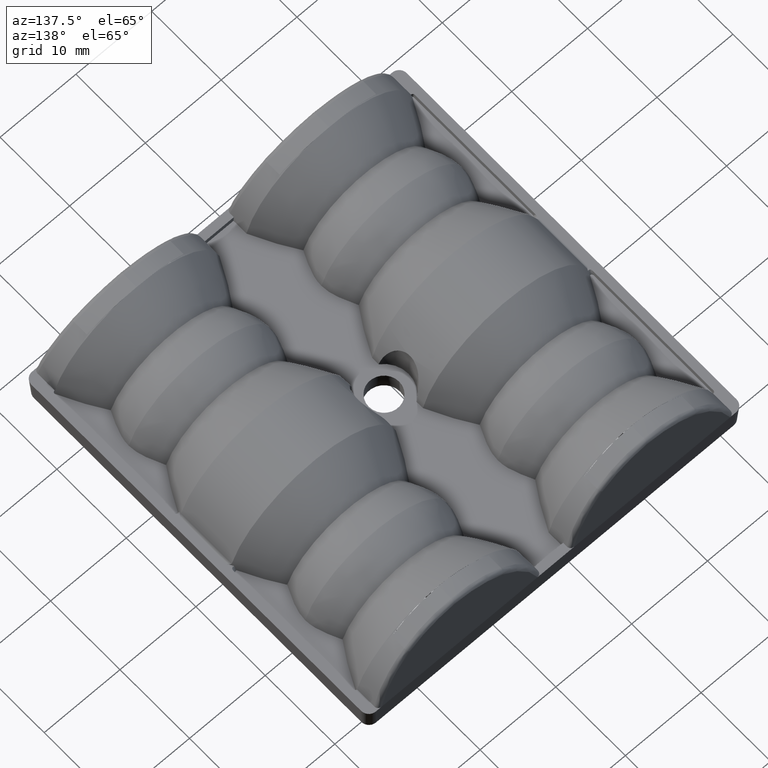
[diagram: clean part render]
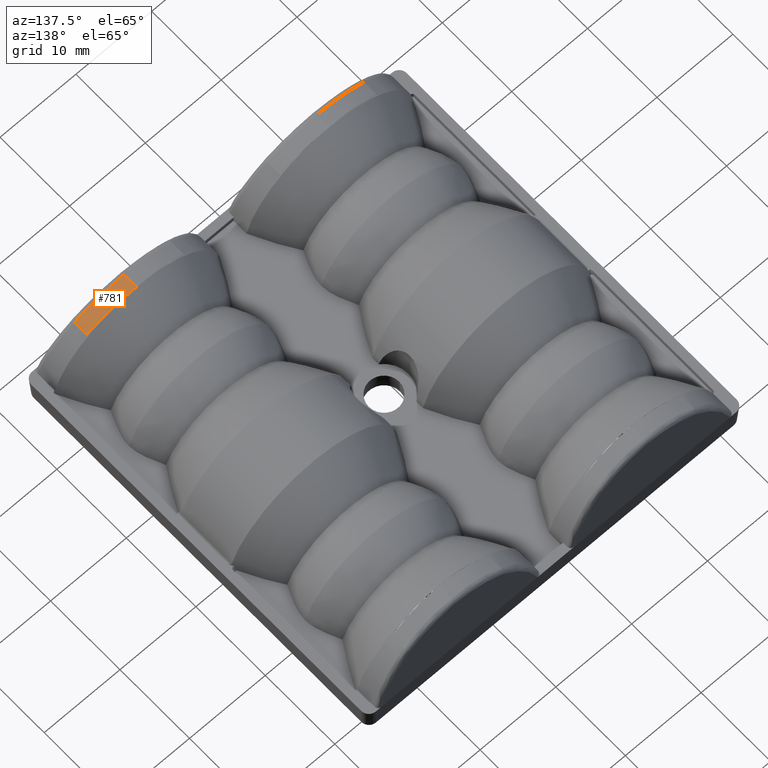
[diagram: same view with one face highlighted and labeled with its STEP entity id]
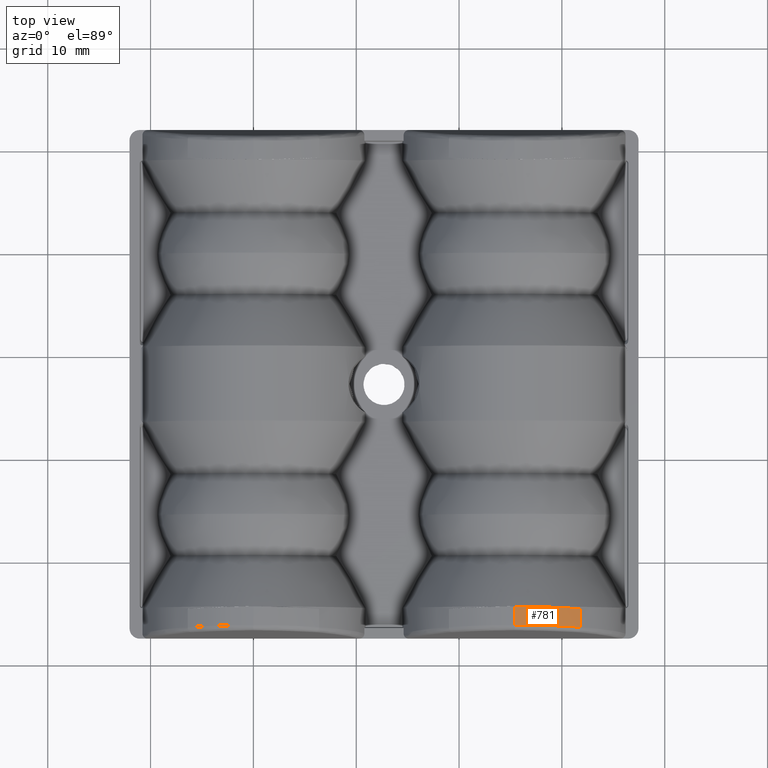
[diagram: same view with one face highlighted and labeled with its STEP entity id]
A machine part, auxiliary view. The second image highlights one B-rep face of the part: STEP entity #781.
A second angle (top view) of the same face is appended — the face is thin or edge-on in the first view.
In plain terms, the highlighted face is a freeform B-spline surface patch.
Its self-contained STEP definition (entity closure, byte-faithful):
#75=(
BOUNDED_CURVE()
B_SPLINE_CURVE(3,(#9301,#9302,#9303,#9304),.UNSPECIFIED.,.F.,.F.)
B_SPLINE_CURVE_WITH_KNOTS((4,4),(0.,1.),.UNSPECIFIED.)
CURVE()
GEOMETRIC_REPRESENTATION_ITEM()
RATIONAL_B_SPLINE_CURVE((1.,0.969542343613685,0.969542343613685,1.))
REPRESENTATION_ITEM('')
);
#408=(
BOUNDED_SURFACE()
B_SPLINE_SURFACE(3,1,((#9312,#9313),(#9314,#9315),(#9316,#9317),(#9318,
#9319)),.UNSPECIFIED.,.F.,.F.,.F.)
B_SPLINE_SURFACE_WITH_KNOTS((4,4),(2,2),(0.,1.),(0.,1.),.UNSPECIFIED.)
GEOMETRIC_REPRESENTATION_ITEM()
RATIONAL_B_SPLINE_SURFACE(((1.,1.),(0.969542343613685,0.969542343613685),
(0.969542343613685,0.969542343613685),(1.,1.)))
REPRESENTATION_ITEM('')
SURFACE()
);
#604=B_SPLINE_CURVE_WITH_KNOTS('',3,(#9308,#9309,#9310,#9311),
 .UNSPECIFIED.,.F.,.F.,(4,4),(0.,1.),.UNSPECIFIED.);
#781=ADVANCED_FACE('',(#1123),#408,.F.);
#1123=FACE_OUTER_BOUND('',#1426,.T.);
#1426=EDGE_LOOP('',(#2343,#2344,#2345,#2346));
#2343=ORIENTED_EDGE('',*,*,#4123,.T.);
#2344=ORIENTED_EDGE('',*,*,#4124,.T.);
#2345=ORIENTED_EDGE('',*,*,#4125,.T.);
#2346=ORIENTED_EDGE('',*,*,#4049,.F.);
#3441=VERTEX_POINT('',#8822);
#3442=VERTEX_POINT('',#8823);
#3477=VERTEX_POINT('',#9305);
#3478=VERTEX_POINT('',#9307);
#4049=EDGE_CURVE('',#3441,#3442,#4783,.T.);
#4123=EDGE_CURVE('',#3441,#3477,#75,.T.);
#4124=EDGE_CURVE('',#3477,#3478,#4803,.T.);
#4125=EDGE_CURVE('',#3478,#3442,#604,.T.);
#4783=LINE('',#8821,#5201);
#4803=LINE('',#9306,#5221);
#5201=VECTOR('',#6279,1.);
#5221=VECTOR('',#6401,1.);
#6279=DIRECTION('',(-8.59255471247758E-15,-1.,1.22291559360907E-14));
#6401=DIRECTION('',(-8.59255471247758E-15,-1.,1.22291559360907E-14));
#8821=CARTESIAN_POINT('',(31.7874877690685,-33.6443384629273,7.8109999999826));
#8822=CARTESIAN_POINT('',(31.7874877690685,-34.65,7.8109999999826));
#8823=CARTESIAN_POINT('',(31.7874864294245,-36.4291926797991,7.8110009196539));
#9301=CARTESIAN_POINT('',(31.7874877690685,-34.65,7.8109999999826));
#9302=CARTESIAN_POINT('',(29.8972311137322,-34.5117878792931,9.10866966701021));
#9303=CARTESIAN_POINT('',(27.7011820151919,-34.4393734586265,9.78856660132947));
#9304=CARTESIAN_POINT('',(25.4,-34.4393734586265,9.78856660132945));
#9305=CARTESIAN_POINT('',(25.4,-34.4393734586265,9.78856660132945));
#9306=CARTESIAN_POINT('',(25.4,-33.4337119215538,9.78856660132945));
#9307=CARTESIAN_POINT('',(25.4,-36.2639240495674,9.78856660132949));
#9308=CARTESIAN_POINT('',(25.4,-36.2639240495674,9.78856660132949));
#9309=CARTESIAN_POINT('',(27.631091690728,-36.2488266381053,9.7885666013295));
#9310=CARTESIAN_POINT('',(29.9548003740541,-36.3103531379515,9.06914687920071));
#9311=CARTESIAN_POINT('',(31.7874835468521,-36.429258047834,7.81100289855166));
#9312=CARTESIAN_POINT('',(25.4,-33.4337119215538,9.78856660132945));
#9313=CARTESIAN_POINT('',(25.4,-37.4714481572224,9.7885666013295));
#9314=CARTESIAN_POINT('',(27.701182015192,-33.4337119215538,9.78856660132947));
#9315=CARTESIAN_POINT('',(27.7011820151919,-37.4714481572224,9.78856660132951));
#9316=CARTESIAN_POINT('',(29.8972311137323,-33.5061263422204,9.10866966701018));
#9317=CARTESIAN_POINT('',(29.8972311137322,-37.543862577889,9.10866966701025));
#9318=CARTESIAN_POINT('',(31.7874877690685,-33.6443384629273,7.8109999999826));
#9319=CARTESIAN_POINT('',(31.7874877690685,-37.6820746985959,7.8109999999826));